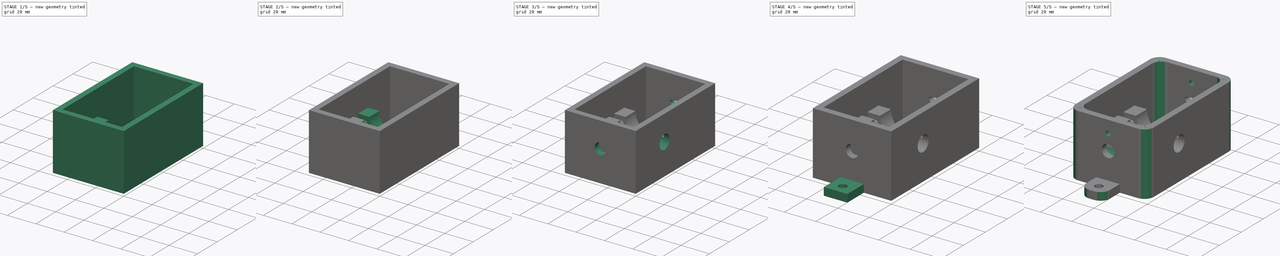
[diagram: build sequence overview — one tinted view per stage of 5, left to right]
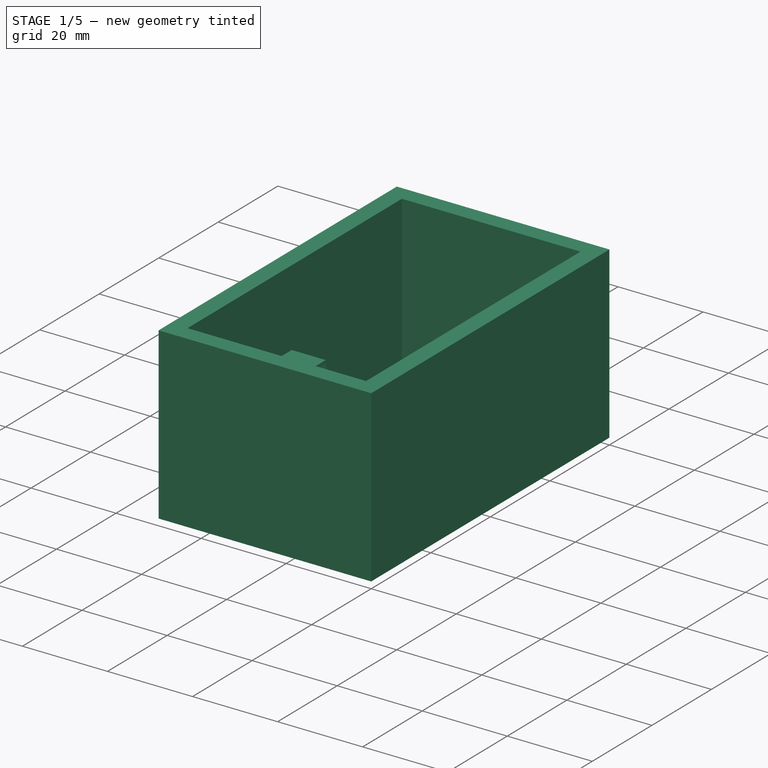
[diagram: stage 1 of 5 — iso view after this stage's code; geometry added in this stage tinted green]
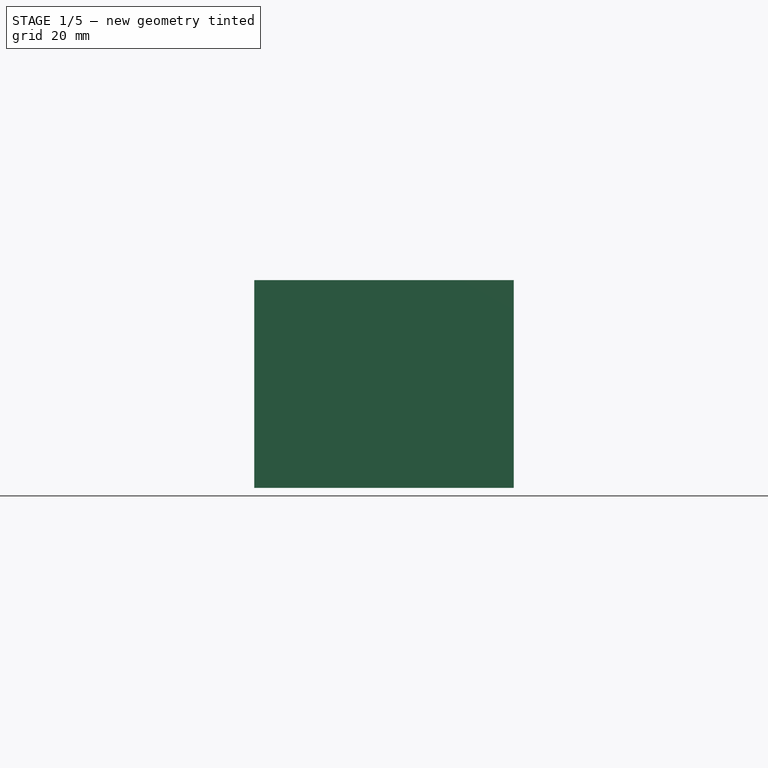
[diagram: stage 1 of 5 — front view after this stage's code; geometry added in this stage tinted green]
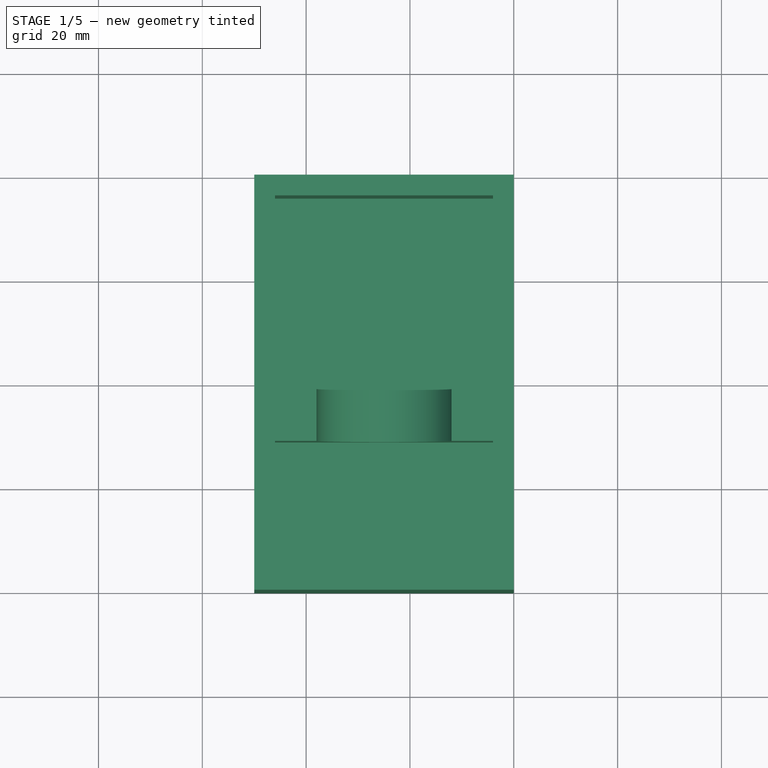
[diagram: stage 1 of 5 — top view after this stage's code; geometry added in this stage tinted green]
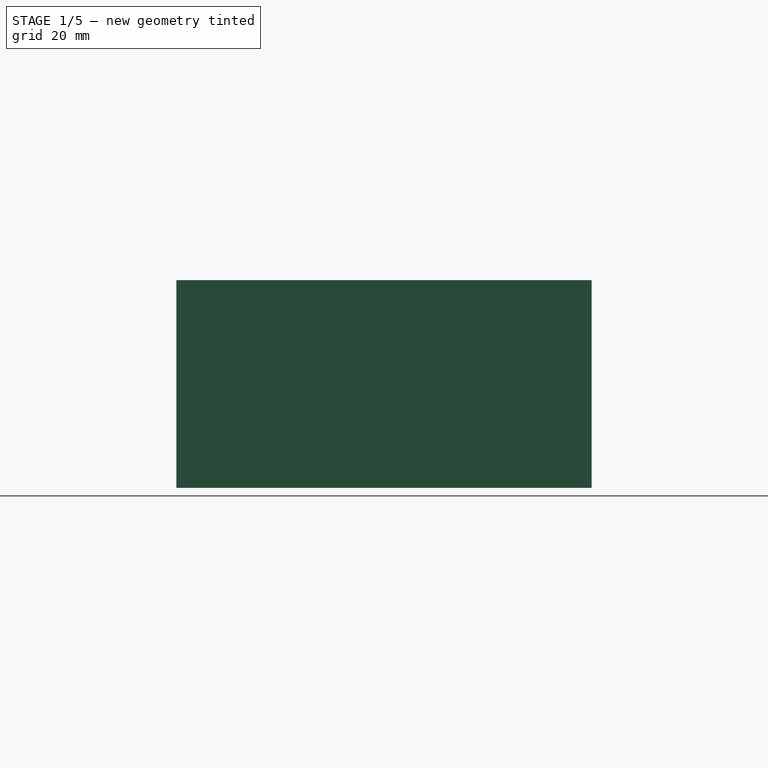
[diagram: stage 1 of 5 — right view after this stage's code; geometry added in this stage tinted green]
FCSTD DOCUMENT  (FreeCAD 0.19R24291 (Git))
Label: ValveMount
License: All rights reserved
LicenseURL: http://en.wikipedia.org/wiki/All_rights_reserved
objects: Sketcher::SketchObject×15, PartDesign::Pocket×8, PartDesign::Pad×7, App::MeasureDistance×5, PartDesign::Fillet×3, PartDesign::Body×1
note: 52 computed .brp shape members not serialized (recipe doc carries the construction recipe); baked Part::Feature solids carry a one-line shape summary decoded from their .brp

FEATURE [Sketcher::SketchObject] Sketch
  FullyConstrained = true
  MapMode = 5
  Support = -> [XY_Plane]
  sketch-geometry (4):
    g0: LineSegment StartX=0 StartY=0 StartZ=0 EndX=-50 EndY=0 EndZ=0
    g1: LineSegment StartX=-50 StartY=0 StartZ=0 EndX=-50 EndY=80 EndZ=0
    g2: LineSegment StartX=-50 StartY=80 StartZ=0 EndX=0 EndY=80 EndZ=0
    g3: LineSegment StartX=0 StartY=80 StartZ=0 EndX=0 EndY=0 EndZ=0
  constraints (11):
    c: Coincident(g0,g1)
    c: Coincident(g1,g2)
    c: Coincident(g2,g3)
    c: Coincident(g3,g0)
    c: Horizontal(g0)
    c: Horizontal(g2)
    c: Vertical(g1)
    c: Vertical(g3)
    c: Coincident(g0,g-1)
    c: DistanceY(g3,g3) = 80
    c: DistanceX(g0,g0) = 50
FEATURE [PartDesign::Pad] Pad
  Direction = (1,1,1)
  Length = 40
  Length2 = 100
  Profile = -> Sketch
  Type = 0
FEATURE [Sketcher::SketchObject] Sketch001
  ExternalGeometry = -> [Pad]
  FullyConstrained = true
  MapMode = 5
  Placement = pos=(0,0,40) rot=(0,0,1;0rad)
  Support = -> [Pad]
  sketch-geometry (4):
    g0: LineSegment StartX=-46 StartY=76 StartZ=0 EndX=-4 EndY=76 EndZ=0
    g1: LineSegment StartX=-4 StartY=76 StartZ=0 EndX=-4 EndY=4 EndZ=0
    g2: LineSegment StartX=-4 StartY=4 StartZ=0 EndX=-46 EndY=4 EndZ=0
    g3: LineSegment StartX=-46 StartY=4 StartZ=0 EndX=-46 EndY=76 EndZ=0
  constraints (12):
    c: Coincident(g0,g1)
    c: Coincident(g1,g2)
    c: Coincident(g2,g3)
    c: Coincident(g3,g0)
    c: Horizontal(g0)
    c: Horizontal(g2)
    c: Vertical(g1)
    c: Vertical(g3)
    c: DistanceY(g-1,g1) = 4
    c: DistanceX(g-2,g1) = -4
    c: Distance(g2,g-3) = 4
    c: Distance(g0,g-4) = 4
FEATURE [PartDesign::Pocket] Pocket
  BaseFeature = -> Pad
  Length = 36
  Length2 = 100
  Profile = -> Sketch001
  Type = 0
FEATURE [Sketcher::SketchObject] Sketch002
  ExternalGeometry = -> [Pocket]
  FullyConstrained = true
  MapMode = 5
  Placement = pos=(0,0,4) rot=(0,0,1;0rad)
  Support = -> [Pocket]
  sketch-geometry (4):
    g0: LineSegment StartX=-4 StartY=29 StartZ=0 EndX=-46 EndY=29 EndZ=0
    g1: LineSegment StartX=-46 StartY=29 StartZ=0 EndX=-46 EndY=39 EndZ=0
    g2: LineSegment StartX=-46 StartY=39 StartZ=0 EndX=-4 EndY=39 EndZ=0
    g3: LineSegment StartX=-4 StartY=39 StartZ=0 EndX=-4 EndY=29 EndZ=0
  constraints (12):
    c: Coincident(g0,g1)
    c: Coincident(g1,g2)
    c: Coincident(g2,g3)
    c: Coincident(g3,g0)
    c: Horizontal(g0)
    c: Horizontal(g2)
    c: Vertical(g1)
    c: Vertical(g3)
    c: PointOnObject(g0,g-4)
    c: PointOnObject(g1,g-3)
    c: Distance(g0,g2) = 10
    c: Distance(g0,g-5) = 25
FEATURE [PartDesign::Pad] Pad001
  BaseFeature = -> Pocket
  Direction = (1,1,1)
  Length = 18
  Length2 = 100
  Profile = -> Sketch002
  Type = 0
FEATURE [Sketcher::SketchObject] Sketch003
  ExternalGeometry = -> [Pad001]
  FullyConstrained = true
  MapMode = 5
  Placement = pos=(0,29,0) rot=(1,0,0;1.5708rad)
  Support = -> [Pad001]
  sketch-geometry (3):
    g0: Circle CenterX=-25 CenterY=22 CenterZ=0 NormalX=0 NormalY=0 NormalZ=1 AngleXU=0 Radius=13
    g1: LineSegment StartX=-46 StartY=22 StartZ=0 EndX=-25 EndY=22 EndZ=0
    g2: LineSegment StartX=-25 StartY=22 StartZ=0 EndX=-4 EndY=22 EndZ=0
  constraints (7):
    c: PointOnObject(g0,g-6)
    c: Radius(g0) = 13
    c: Coincident(g1,g-6)
    c: Coincident(g1,g0)
    c: Coincident(g2,g0)
    c: Coincident(g2,g-6)
    c: Equal(g2,g1)
FEATURE [PartDesign::Pocket] Pocket001
  BaseFeature = -> Pad001
  Length = 30
  Length2 = 100
  Profile = -> Sketch003
  Type = 0
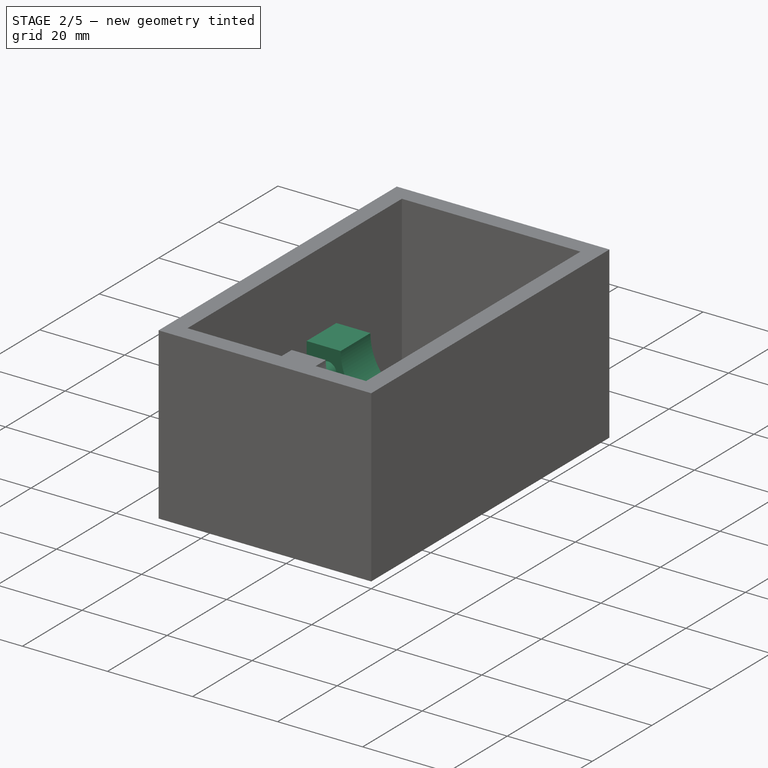
[diagram: stage 2 of 5 — iso view after this stage's code; geometry added in this stage tinted green]
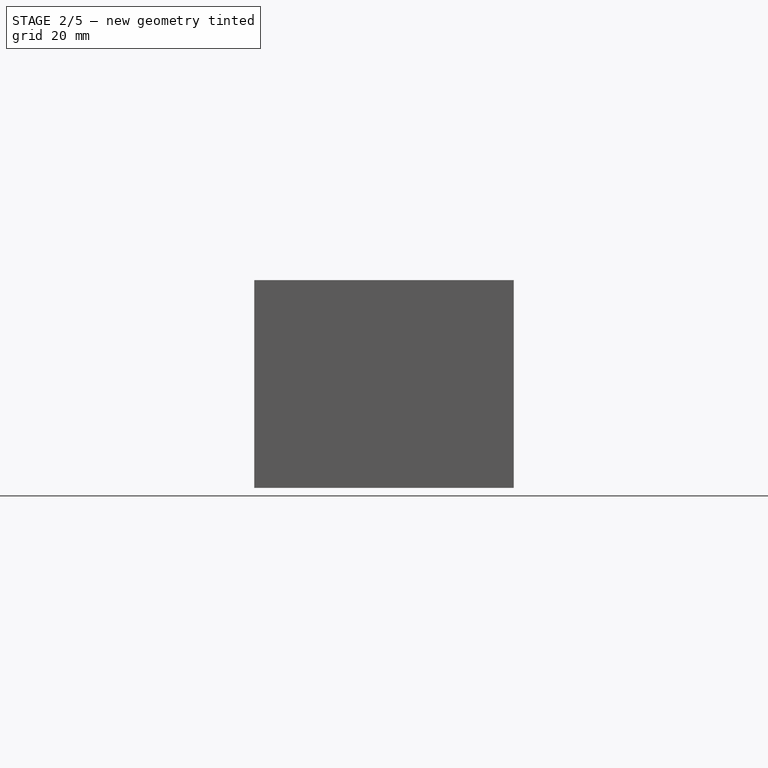
[diagram: stage 2 of 5 — front view after this stage's code; geometry added in this stage tinted green]
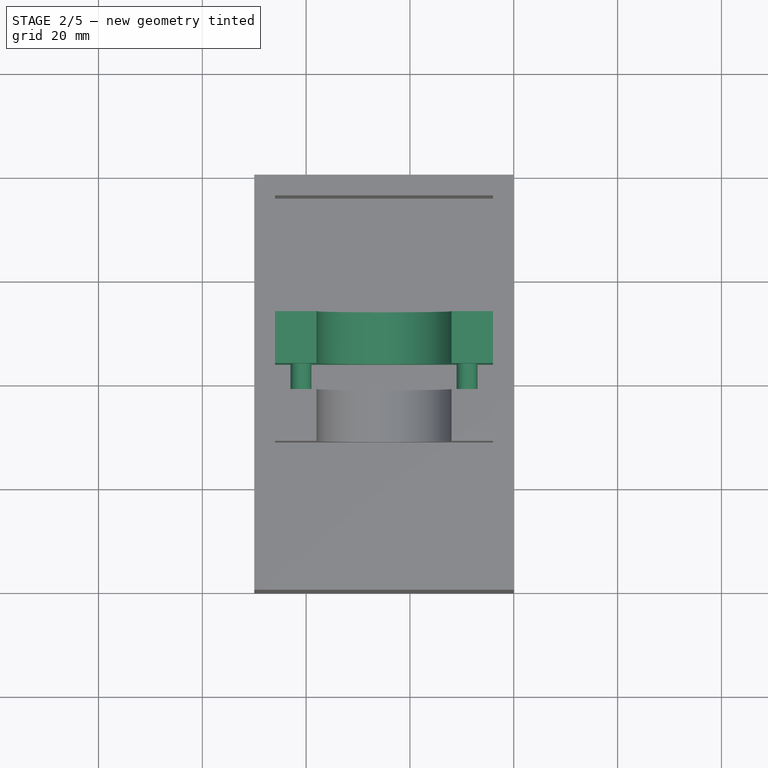
[diagram: stage 2 of 5 — top view after this stage's code; geometry added in this stage tinted green]
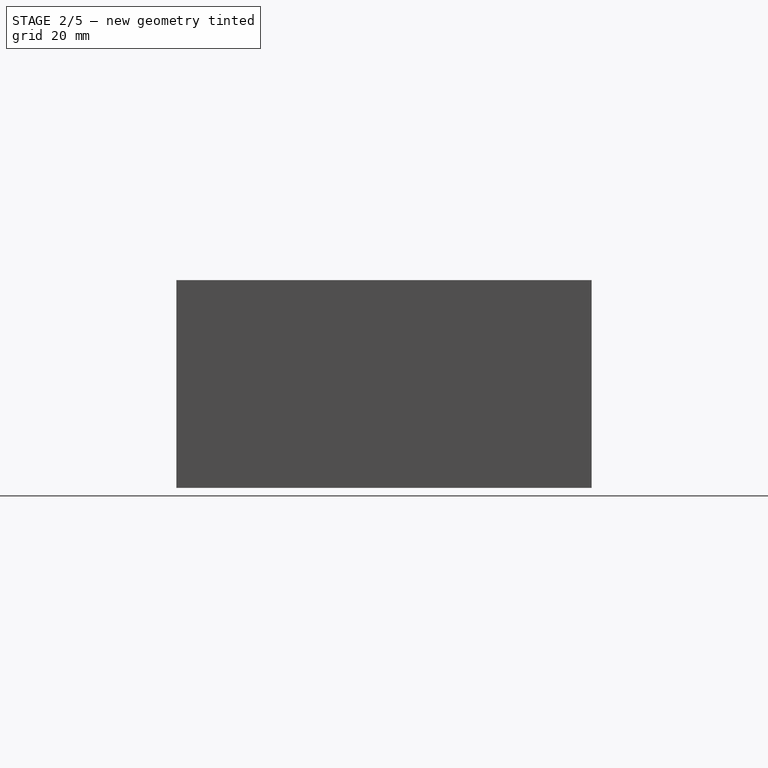
[diagram: stage 2 of 5 — right view after this stage's code; geometry added in this stage tinted green]
FEATURE [Sketcher::SketchObject] Sketch004
  ExternalGeometry = -> [Pocket001]
  FullyConstrained = true
  MapMode = 5
  Placement = pos=(0,0,4) rot=(0,0,1;0rad)
  Support = -> [Pocket001]
  sketch-geometry (4):
    g0: LineSegment StartX=-46 StartY=54 StartZ=0 EndX=-4 EndY=54 EndZ=0
    g1: LineSegment StartX=-4 StartY=54 StartZ=0 EndX=-4 EndY=44 EndZ=0
    g2: LineSegment StartX=-4 StartY=44 StartZ=0 EndX=-46 EndY=44 EndZ=0
    g3: LineSegment StartX=-46 StartY=44 StartZ=0 EndX=-46 EndY=54 EndZ=0
  constraints (12):
    c: Coincident(g0,g1)
    c: Coincident(g1,g2)
    c: Coincident(g2,g3)
    c: Coincident(g3,g0)
    c: Horizontal(g0)
    c: Horizontal(g2)
    c: Vertical(g1)
    c: Vertical(g3)
    c: PointOnObject(g0,g-3)
    c: PointOnObject(g1,g-4)
    c: Distance(g0,g2) = 10
    c: Distance(g-5,g2) = 5
FEATURE [PartDesign::Pad] Pad002
  BaseFeature = -> Pocket001
  Direction = (1,1,1)
  Length = 18
  Length2 = 100
  Profile = -> Sketch004
  Type = 0
FEATURE [Sketcher::SketchObject] Sketch005
  ExternalGeometry = -> [Pad002]
  FullyConstrained = true
  MapMode = 5
  Placement = pos=(0,44,0) rot=(1,0,0;1.5708rad)
  Support = -> [Pad002]
  sketch-geometry (1):
    g0: Circle CenterX=-25 CenterY=22 CenterZ=0 NormalX=0 NormalY=0 NormalZ=1 AngleXU=0 Radius=13
  constraints (2):
    c: Coincident(g0,g-4)
    c: PointOnObject(g-4,g0)
FEATURE [PartDesign::Pocket] Pocket002
  BaseFeature = -> Pad002
  Length = 10
  Length2 = 100
  Profile = -> Sketch005
  Type = 0
FEATURE [App::MeasureDistance] Distance  label="Distance: 36,01 mm"
  Distance = 36.0095
  P1 = (-4.415,75.9438,4)
  P2 = (-5.23976,76,40)
FEATURE [App::MeasureDistance] Distance001  label="Distance: 15,00 mm"
  Distance = 15.0004
  P1 = (-4.03134,28.8949,4)
  P2 = (-4.0553,29,19)
FEATURE [Sketcher::SketchObject] Sketch006
  ExternalGeometry = -> [Pocket002]
  FullyConstrained = true
  MapMode = 5
  Placement = pos=(0,44,0) rot=(1,0,0;1.5708rad)
  Support = -> [Pocket002]
  sketch-geometry (8):
    g0: ArcOfCircle CenterX=-41 CenterY=17 CenterZ=0 NormalX=0 NormalY=0 NormalZ=1 AngleXU=0 Radius=2 StartAngle=5e-16 EndAngle=3.14159
    g1: ArcOfCircle CenterX=-41 CenterY=12 CenterZ=0 NormalX=0 NormalY=0 NormalZ=1 AngleXU=0 Radius=2 StartAngle=3.14159 EndAngle=6.28319
    g2: LineSegment StartX=-43 StartY=17 StartZ=0 EndX=-43 EndY=12 EndZ=0
    g3: LineSegment StartX=-39 StartY=17 StartZ=0 EndX=-39 EndY=12 EndZ=0
    g4: ArcOfCircle CenterX=-9 CenterY=17 CenterZ=0 NormalX=0 NormalY=0 NormalZ=1 AngleXU=0 Radius=2 StartAngle=0 EndAngle=3.14159
    g5: ArcOfCircle CenterX=-9 CenterY=12 CenterZ=0 NormalX=0 NormalY=0 NormalZ=1 AngleXU=0 Radius=2 StartAngle=3.14159 EndAngle=6.28319
    g6: LineSegment StartX=-11 StartY=17 StartZ=0 EndX=-11 EndY=12 EndZ=0
    g7: LineSegment StartX=-7 StartY=17 StartZ=0 EndX=-7 EndY=12 EndZ=0
  constraints (20):
    c: Tangent(g0,g3) = 1.5708
    c: Tangent(g0,g2) = -1.5708
    c: Tangent(g2,g1) = -1.5708
    c: Tangent(g3,g1) = 1.5708
    c: Vertical(g2)
    c: Equal(g0,g1)
    c: Tangent(g4,g7) = 1.5708
    c: Tangent(g4,g6) = -1.5708
    c: Tangent(g6,g5) = -1.5708
    c: Tangent(g7,g5) = 1.5708
    c: Vertical(g6)
    c: Equal(g4,g5)
    c: Equal(g7,g3)
    c: Equal(g0,g4)
    c: Distance(g0,g-7) = 3
    c: Distance(g4,g-6) = 3
    c: Distance(g4,g-3) = 5
    c: Distance(g0,g-5) = 5
    c: Distance(g1,g-7) = 5
    c: DistanceY(g6,g6) = 5
FEATURE [PartDesign::Pad] Pad003
  BaseFeature = -> Pocket002
  Direction = (1,1,1)
  Length = 5
  Length2 = 100
  Profile = -> Sketch006
  Type = 0
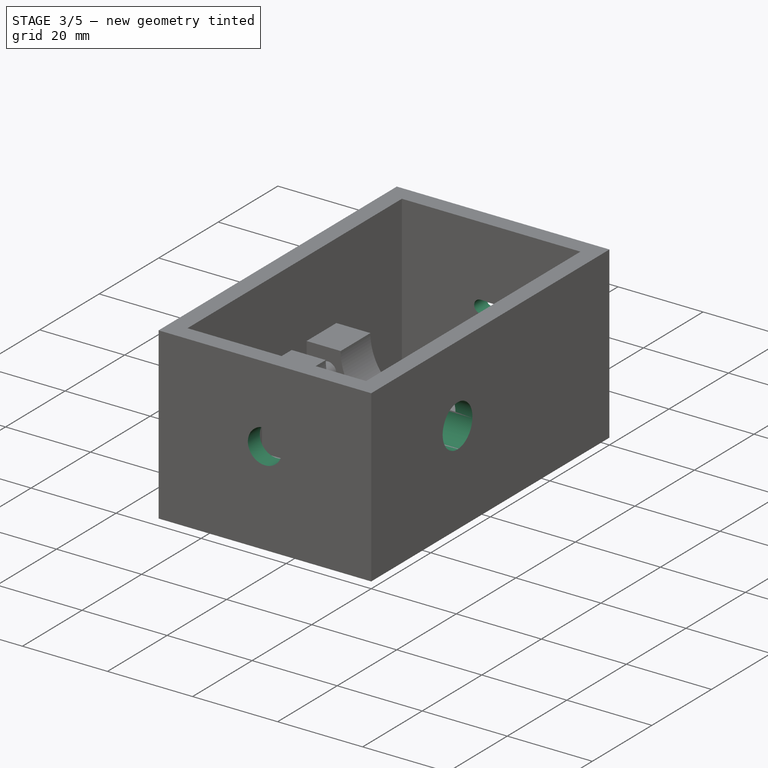
[diagram: stage 3 of 5 — iso view after this stage's code; geometry added in this stage tinted green]
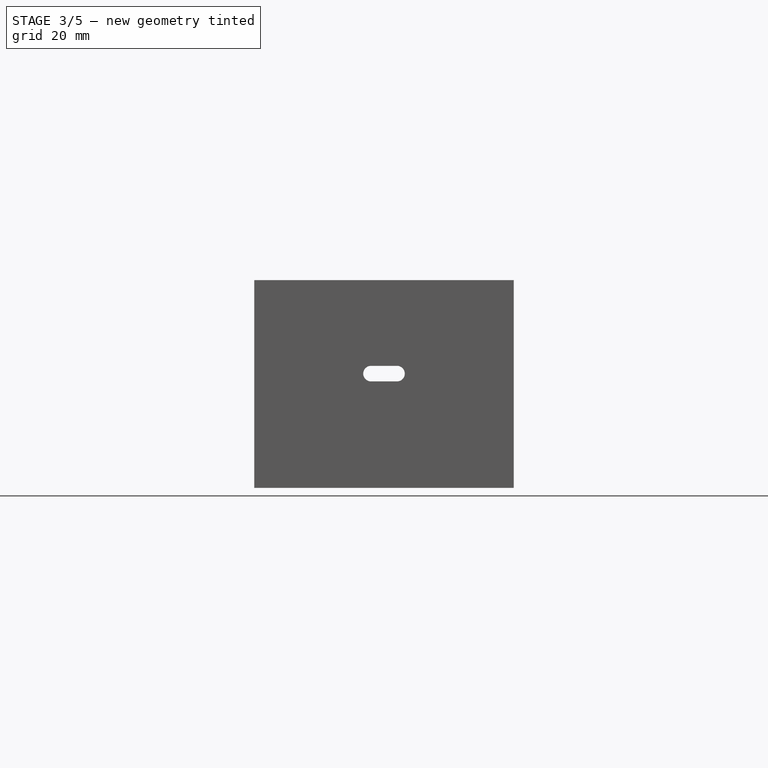
[diagram: stage 3 of 5 — front view after this stage's code; geometry added in this stage tinted green]
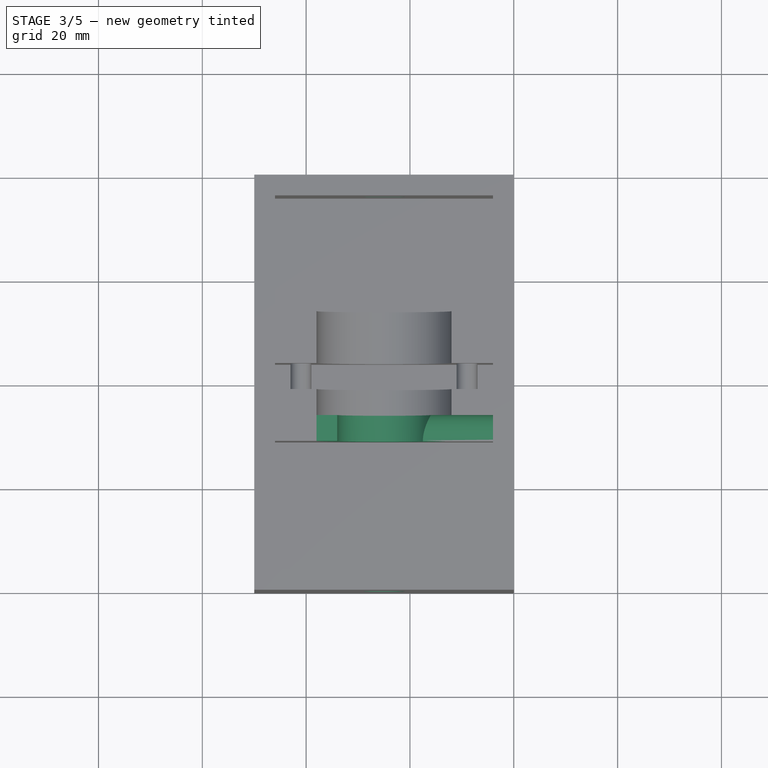
[diagram: stage 3 of 5 — top view after this stage's code; geometry added in this stage tinted green]
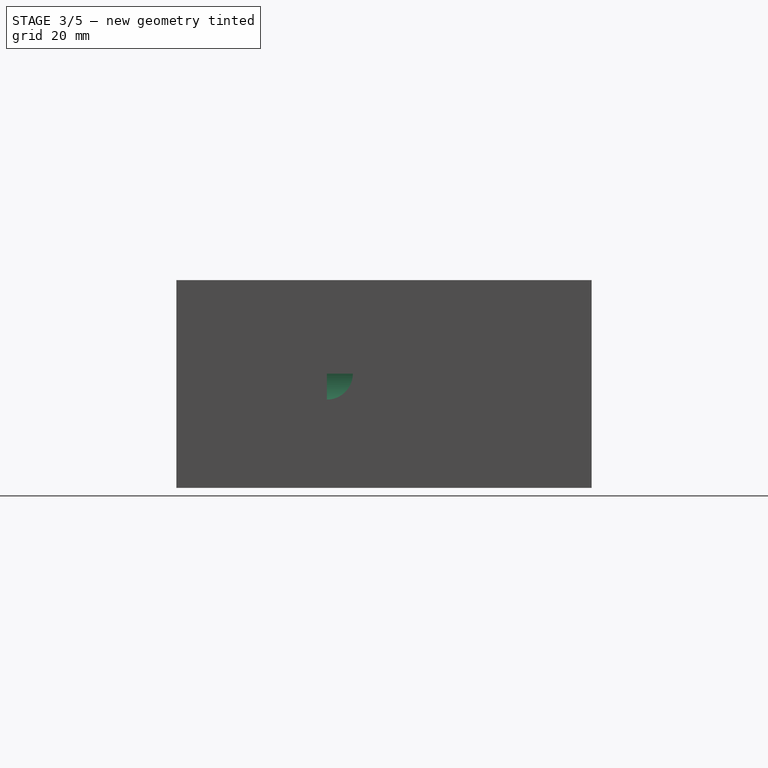
[diagram: stage 3 of 5 — right view after this stage's code; geometry added in this stage tinted green]
FEATURE [App::MeasureDistance] Distance002  label="Distance: 21,86 mm"
  Distance = 21.8583
  P1 = (-4.15041,75.8632,4)
  P2 = (-4.06757,54.005,4)
FEATURE [App::MeasureDistance] Distance003  label="Distance: 24,99 mm"
  Distance = 24.9938
  P1 = (-45.8393,4,4.1323)
  P2 = (-45.9947,28.9929,4)
FEATURE [App::MeasureDistance] Distance004  label="Distance: 47,03 mm"
  Distance = 47.0301
  P1 = (-45.8602,28.8864,4)
  P2 = (-45.9573,75.9164,4)
FEATURE [Sketcher::SketchObject] Sketch007
  ExternalGeometry = -> [Pad003]
  FullyConstrained = true
  MapMode = 5
  Placement = pos=(0,29,0) rot=(1,0,0;1.5708rad)
  Support = -> [Pad003]
  sketch-geometry (4):
    g0: ArcOfCircle CenterX=-25 CenterY=22 CenterZ=0 NormalX=0 NormalY=0 NormalZ=1 AngleXU=0 Radius=13 StartAngle=3.14159 EndAngle=6.28319
    g1: ArcOfCircle CenterX=-25 CenterY=22 CenterZ=0 NormalX=0 NormalY=0 NormalZ=1 AngleXU=0 Radius=9 StartAngle=3.14159 EndAngle=6.28319
    g2: LineSegment StartX=-38 StartY=22 StartZ=0 EndX=-34 EndY=22 EndZ=0
    g3: LineSegment StartX=-16 StartY=22 StartZ=0 EndX=-12 EndY=22 EndZ=0
  constraints (11):
    c: Coincident(g0,g-3)
    c: Coincident(g0,g-3)
    c: Coincident(g1,g0)
    c: Distance(g0,g1) = 4
    c: Coincident(g2,g0)
    c: Coincident(g2,g1)
    c: Horizontal(g2)
    c: Coincident(g3,g1)
    c: Coincident(g3,g0)
    c: Horizontal(g3)
    c: PointOnObject(g0,g-4)
FEATURE [PartDesign::Pad] Pad004
  BaseFeature = -> Pad003
  Direction = (1,1,1)
  Length = 5
  Length2 = 100
  Profile = -> Sketch007
  Reversed = true
  Type = 0
FEATURE [Sketcher::SketchObject] Sketch008
  ExternalGeometry = -> [Pad004]
  FullyConstrained = true
  MapMode = 5
  Placement = pos=(0,0,0) rot=(0.57735,0.57735,0.57735;2.0944rad)
  Support = -> [Pad004]
  sketch-geometry (1):
    g0: Circle CenterX=29 CenterY=22 CenterZ=0 NormalX=0 NormalY=0 NormalZ=1 AngleXU=0 Radius=5
  constraints (2):
    c: Coincident(g0,g-3)
    c: Radius(g0) = 5
FEATURE [PartDesign::Pocket] Pocket003
  BaseFeature = -> Pad004
  Length = 19
  Length2 = 100
  Profile = -> Sketch008
  Type = 0
FEATURE [Sketcher::SketchObject] Sketch009
  ExternalGeometry = -> [Pocket003]
  FullyConstrained = true
  MapMode = 5
  Placement = pos=(0,80,0) rot=(0,0.707107,0.707107;3.14159rad)
  Support = -> [Pocket003]
  sketch-geometry (5):
    g0: ArcOfCircle CenterX=22.5 CenterY=22 CenterZ=0 NormalX=0 NormalY=0 NormalZ=1 AngleXU=0 Radius=1.5 StartAngle=1.5708 EndAngle=4.71239
    g1: ArcOfCircle CenterX=27.5 CenterY=22 CenterZ=0 NormalX=0 NormalY=0 NormalZ=1 AngleXU=0 Radius=1.5 StartAngle=4.71239 EndAngle=7.85398
    g2: LineSegment StartX=22.5 StartY=20.5 StartZ=0 EndX=27.5 EndY=20.5 EndZ=0
    g3: LineSegment StartX=22.5 StartY=23.5 StartZ=0 EndX=27.5 EndY=23.5 EndZ=0
    g4: LineSegment StartX=22.5 StartY=22 StartZ=0 EndX=27.5 EndY=22 EndZ=0
  constraints (12):
    c: Tangent(g0,g3) = 1.5708
    c: Tangent(g0,g2) = -1.5708
    c: Tangent(g2,g1) = -1.5708
    c: Tangent(g3,g1) = 1.5708
    c: Horizontal(g2)
    c: Equal(g0,g1)
    c: Coincident(g4,g0)
    c: Coincident(g4,g1)
    c: PointOnObject(g-3,g4)
    c: Distance(g0,g0) = 3
    c: Distance(g0,g1) = 5
    c: Distance(g1,g-3) = 2.5
FEATURE [PartDesign::Pocket] Pocket004
  BaseFeature = -> Pocket003
  Length = 5
  Length2 = 100
  Profile = -> Sketch009
  Type = 0
FEATURE [Sketcher::SketchObject] Sketch010
  ExternalGeometry = -> [Pocket004]
  FullyConstrained = true
  MapMode = 5
  Placement = pos=(0,0,0) rot=(1,0,0;1.5708rad)
  Support = -> [Pocket004]
  sketch-geometry (1):
    g0: Circle CenterX=-25 CenterY=22 CenterZ=0 NormalX=0 NormalY=0 NormalZ=1 AngleXU=0 Radius=4
  constraints (2):
    c: Coincident(g0,g-3)
    c: Radius(g0) = 4
FEATURE [PartDesign::Pocket] Pocket005
  BaseFeature = -> Pocket004
  Length = 5
  Length2 = 100
  Profile = -> Sketch010
  Type = 0
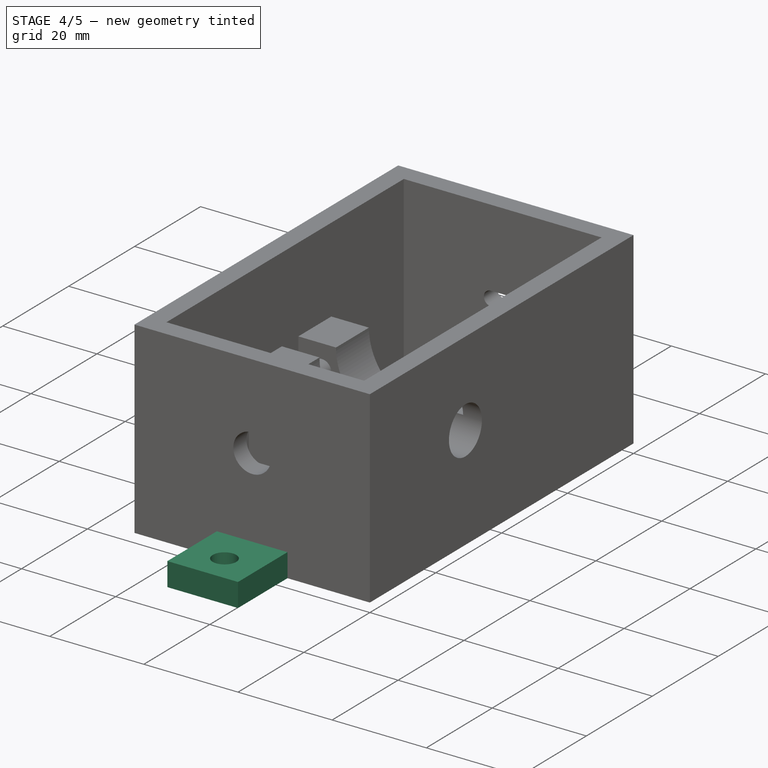
[diagram: stage 4 of 5 — iso view after this stage's code; geometry added in this stage tinted green]
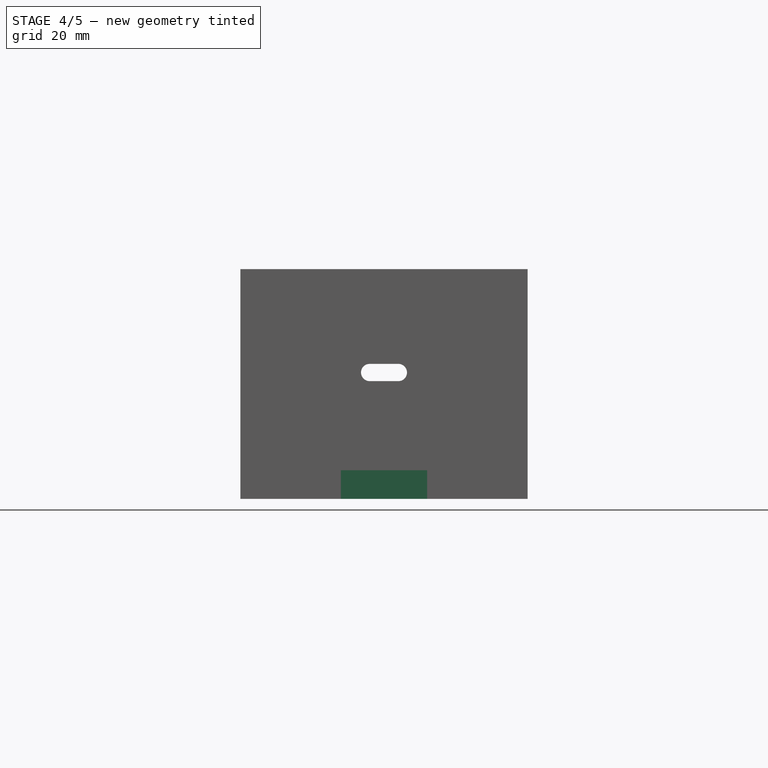
[diagram: stage 4 of 5 — front view after this stage's code; geometry added in this stage tinted green]
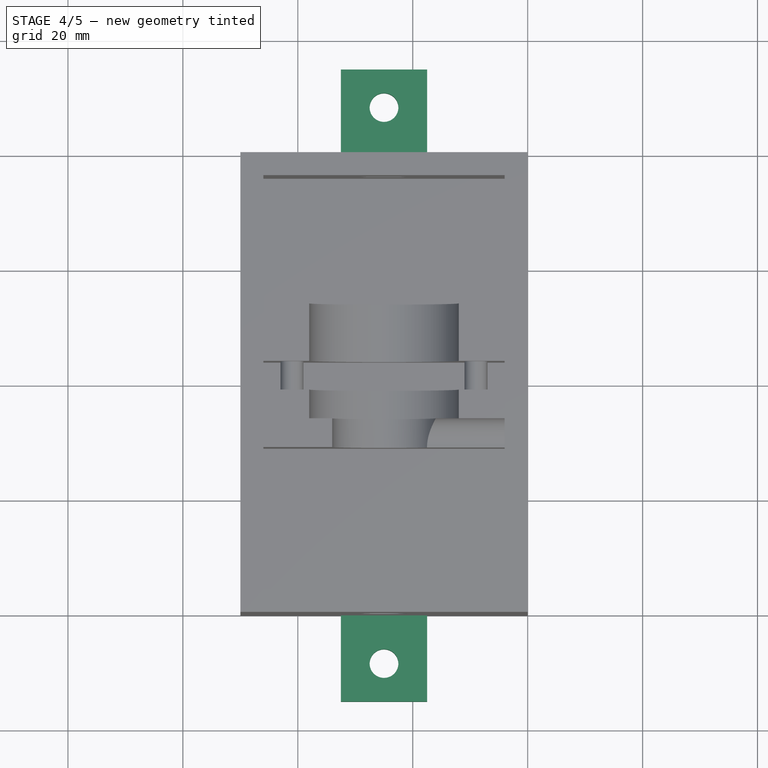
[diagram: stage 4 of 5 — top view after this stage's code; geometry added in this stage tinted green]
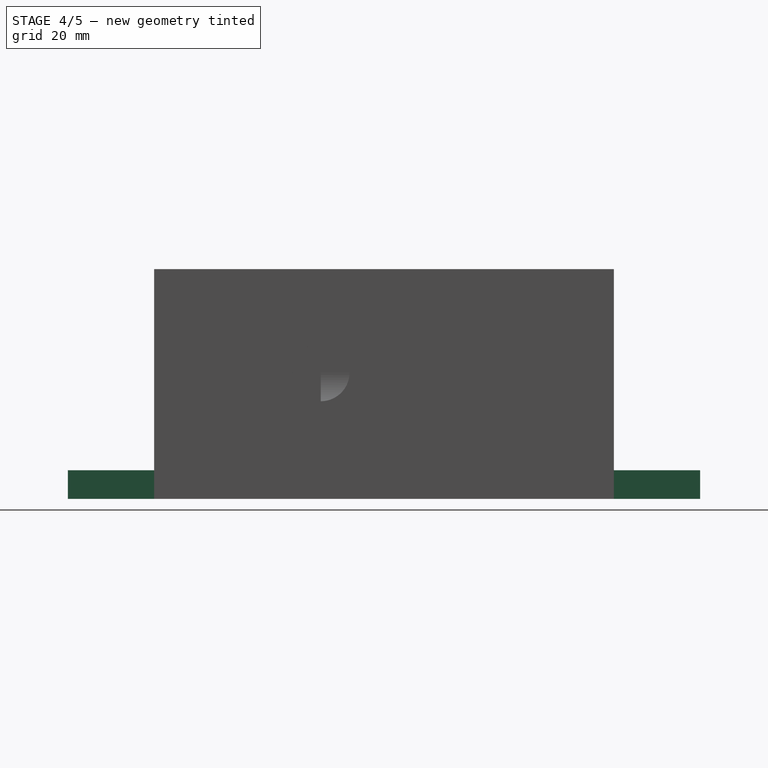
[diagram: stage 4 of 5 — right view after this stage's code; geometry added in this stage tinted green]
FEATURE [Sketcher::SketchObject] Sketch011
  ExternalGeometry = -> [Pocket005]
  FullyConstrained = true
  MapMode = 5
  Placement = pos=(0,80,0) rot=(0,0.707107,0.707107;3.14159rad)
  Support = -> [Pocket005]
  sketch-geometry (6):
    g0: LineSegment StartX=17.5 StartY=0 StartZ=0 EndX=32.5 EndY=0 EndZ=0
    g1: LineSegment StartX=32.5 StartY=0 StartZ=0 EndX=32.5 EndY=5 EndZ=0
    g2: LineSegment StartX=32.5 StartY=5 StartZ=0 EndX=17.5 EndY=5 EndZ=0
    g3: LineSegment StartX=17.5 StartY=5 StartZ=0 EndX=17.5 EndY=0 EndZ=0
    g4: LineSegment StartX=0 StartY=0 StartZ=0 EndX=17.5 EndY=0 EndZ=0
    g5: LineSegment StartX=32.5 StartY=0 StartZ=0 EndX=50 EndY=0 EndZ=0
  constraints (16):
    c: Coincident(g0,g1)
    c: Coincident(g1,g2)
    c: Coincident(g2,g3)
    c: Coincident(g3,g0)
    c: Horizontal(g0)
    c: Horizontal(g2)
    c: Vertical(g1)
    c: Vertical(g3)
    c: PointOnObject(g0,g-5)
    c: DistanceX(g0,g0) = 15
    c: Coincident(g4,g-1)
    c: Coincident(g4,g0)
    c: Coincident(g5,g0)
    c: Coincident(g5,g-5)
    c: Equal(g5,g4)
    c: DistanceY(g1,g1) = 5
FEATURE [PartDesign::Pad] Pad005
  BaseFeature = -> Pocket005
  Direction = (1,1,1)
  Length = 15
  Length2 = 100
  Profile = -> Sketch011
  Type = 0
FEATURE [Sketcher::SketchObject] Sketch012
  ExternalGeometry = -> [Pad005]
  FullyConstrained = true
  MapMode = 5
  Placement = pos=(0,0,0) rot=(1,0,0;1.5708rad)
  Support = -> [Pad005]
  sketch-geometry (4):
    g0: LineSegment StartX=-32.5 StartY=5 StartZ=0 EndX=-17.5 EndY=5 EndZ=0
    g1: LineSegment StartX=-17.5 StartY=5 StartZ=0 EndX=-17.5 EndY=0 EndZ=0
    g2: LineSegment StartX=-17.5 StartY=0 StartZ=0 EndX=-32.5 EndY=0 EndZ=0
    g3: LineSegment StartX=-32.5 StartY=0 StartZ=0 EndX=-32.5 EndY=5 EndZ=0
  constraints (10):
    c: Coincident(g0,g1)
    c: Coincident(g1,g2)
    c: Coincident(g2,g3)
    c: Coincident(g3,g0)
    c: Horizontal(g0)
    c: Horizontal(g2)
    c: Vertical(g1)
    c: Vertical(g3)
    c: Coincident(g0,g-5)
    c: Coincident(g2,g-4)
FEATURE [PartDesign::Pad] Pad006
  BaseFeature = -> Pad005
  Direction = (1,1,1)
  Length = 15
  Length2 = 100
  Profile = -> Sketch012
  Type = 0
FEATURE [Sketcher::SketchObject] Sketch013
  ExternalGeometry = -> [Pad006]
  FullyConstrained = true
  MapMode = 5
  Placement = pos=(0,1.1e-15,5) rot=(0,0,1;0rad)
  Support = -> [Pad006]
  sketch-geometry (6):
    g0: LineSegment StartX=-32.5 StartY=-15 StartZ=0 EndX=-25 EndY=-8.38562 EndZ=0
    g1: LineSegment StartX=-25 StartY=-8.38562 StartZ=0 EndX=-17.5 EndY=-15 EndZ=0
    g2: LineSegment StartX=-32.5 StartY=95 StartZ=0 EndX=-25 EndY=88.3856 EndZ=0
    g3: LineSegment StartX=-25 StartY=88.3856 StartZ=0 EndX=-17.5 EndY=95 EndZ=0
    g4: Circle CenterX=-25 CenterY=88.3856 CenterZ=0 NormalX=0 NormalY=0 NormalZ=1 AngleXU=0 Radius=2.5
    g5: Circle CenterX=-25 CenterY=-8.38562 CenterZ=0 NormalX=0 NormalY=0 NormalZ=1 AngleXU=0 Radius=2.5
  constraints (14):
    c: Coincident(g0,g-4)
    c: Coincident(g1,g0)
    c: Coincident(g1,g-4)
    c: Coincident(g2,g-3)
    c: Coincident(g3,g2)
    c: Coincident(g3,g-3)
    c: Equal(g2,g3)
    c: Equal(g3,g0)
    c: Equal(g0,g1)
    c: Distance(g1) = 10
    c: Coincident(g4,g2)
    c: Coincident(g5,g0)
    c: Radius(g5) = 2.5
    c: Equal(g5,g4)
FEATURE [PartDesign::Pocket] Pocket006
  BaseFeature = -> Pad006
  Length = 5
  Length2 = 100
  Profile = -> Sketch013
  Type = 0
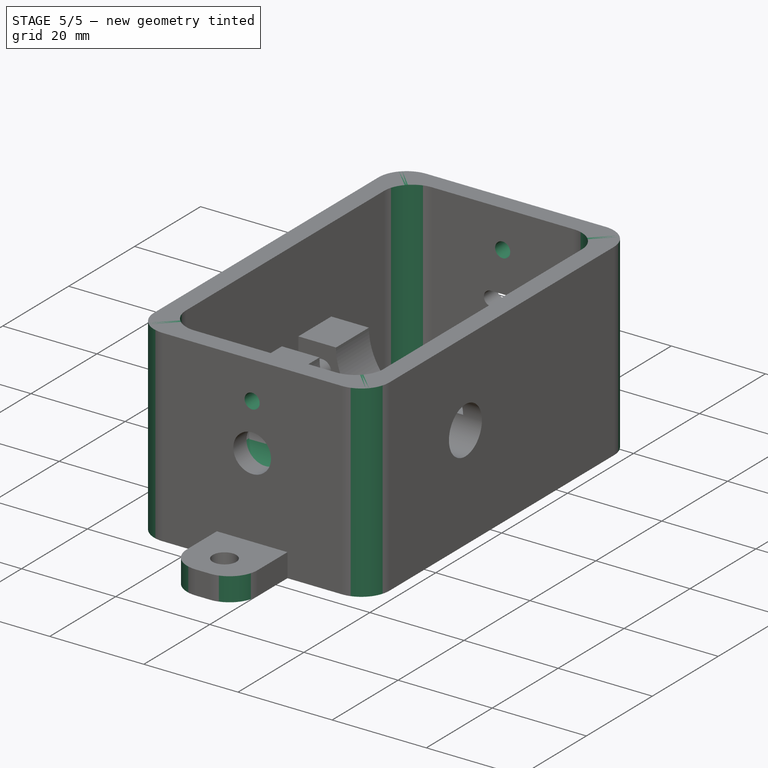
[diagram: stage 5 of 5 — iso view after this stage's code; geometry added in this stage tinted green]
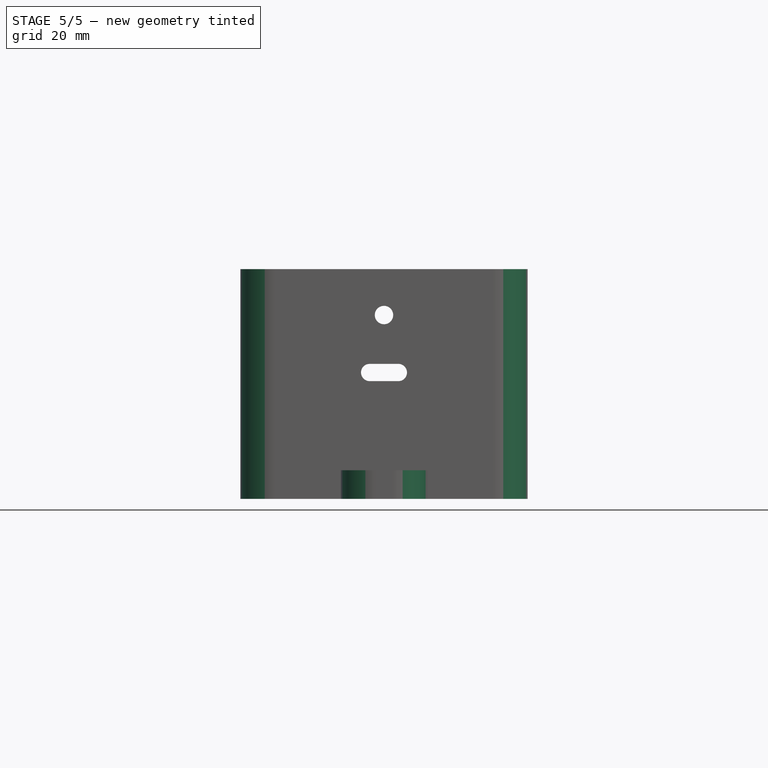
[diagram: stage 5 of 5 — front view after this stage's code; geometry added in this stage tinted green]
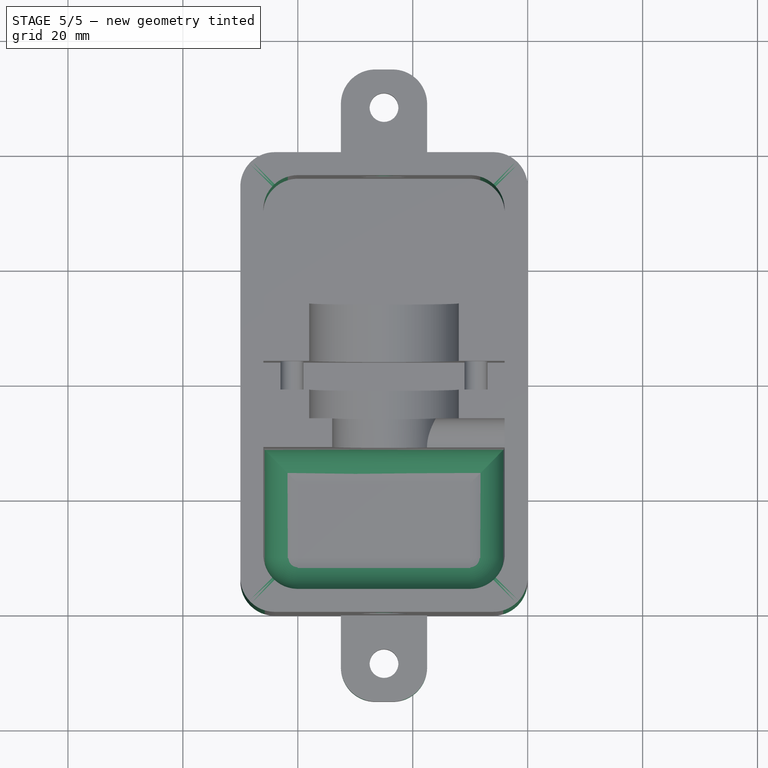
[diagram: stage 5 of 5 — top view after this stage's code; geometry added in this stage tinted green]
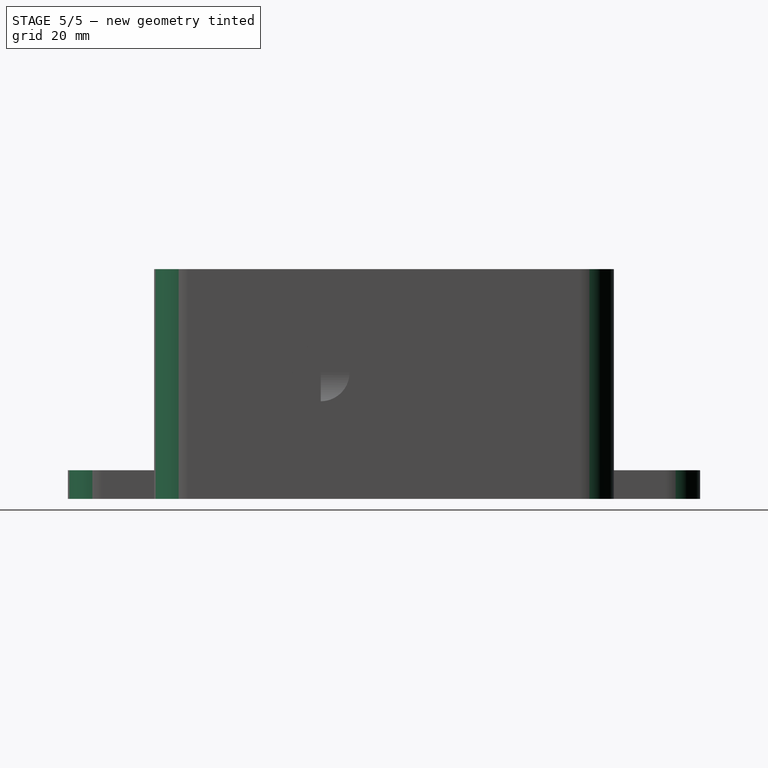
[diagram: stage 5 of 5 — right view after this stage's code; geometry added in this stage tinted green]
FEATURE [PartDesign::Fillet] Fillet
  Base = -> Pocket006 [Edge23,Edge18,Edge86,Edge90]
  BaseFeature = -> Pocket006
  Radius = 6
  SupportTransform = false
FEATURE [PartDesign::Fillet] Fillet001
  Base = -> Fillet [Face34,Edge77,Edge58,Edge60,Edge65]
  BaseFeature = -> Fillet
  Radius = 6
  SupportTransform = false
FEATURE [PartDesign::Fillet] Fillet002
  Base = -> Fillet001 [Edge57,Edge56,Edge62,Edge59]
  BaseFeature = -> Fillet001
  Radius = 6
  SupportTransform = false
FEATURE [Sketcher::SketchObject] Sketch014
  ExternalGeometry = -> [Fillet002]
  FullyConstrained = true
  MapMode = 5
  Placement = pos=(0,80,0) rot=(0,0.707107,0.707107;3.14159rad)
  Support = -> [Fillet002]
  sketch-geometry (4):
    g0: LineSegment StartX=6 StartY=40 StartZ=0 EndX=25 EndY=40 EndZ=0
    g1: LineSegment StartX=25 StartY=40 StartZ=0 EndX=44 EndY=40 EndZ=0
    g2: Circle CenterX=25 CenterY=32 CenterZ=0 NormalX=0 NormalY=0 NormalZ=1 AngleXU=0 Radius=1.6
    g3: LineSegment StartX=25 StartY=32 StartZ=0 EndX=25 EndY=40 EndZ=0
  constraints (10):
    c: Coincident(g0,g-3)
    c: PointOnObject(g0,g-3)
    c: Coincident(g1,g-3)
    c: Coincident(g0,g1)
    c: Equal(g0,g1)
    c: Coincident(g3,g2)
    c: Coincident(g3,g0)
    c: Angle(g0,g3) = 1.5708
    c: Distance(g2,g0) = 8
    c: Radius(g2) = 1.6
FEATURE [PartDesign::Pocket] Pocket007
  BaseFeature = -> Fillet002
  Length = 5
  Length2 = 100
  Profile = -> Sketch014
  Type = 1
FEATURE [PartDesign::Body] Body
  Group = -> [Sketch,Pad,Sketch001,Pocket,Sketch002,Pad001,Sketch003,Pocket001,Sketch004,Pad002,Sketch005,Pocket002,Sketch006,Pad003,Sketch007,Pad004,Sketch008,Pocket003,Sketch009,Pocket004,Sketch010,Pocket005,Sketch011,Pad005,Sketch012,Pad006,Sketch013,Pocket006,Fillet,Fillet001,Fillet002,Sketch014,Pocket007]
  Origin = -> Origin
  Tip = -> Pocket007
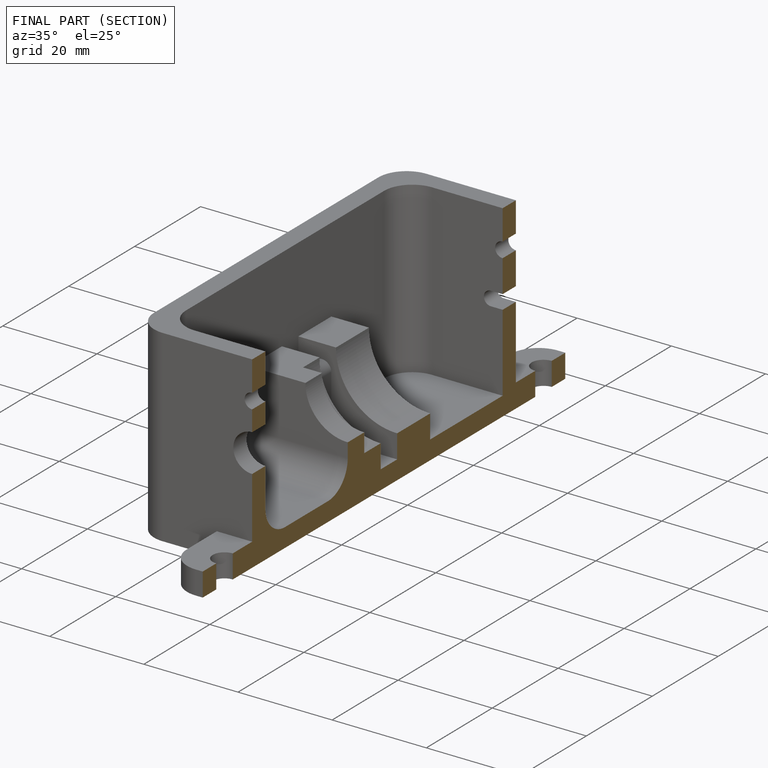
[diagram: finished part — half-section view (interior)]
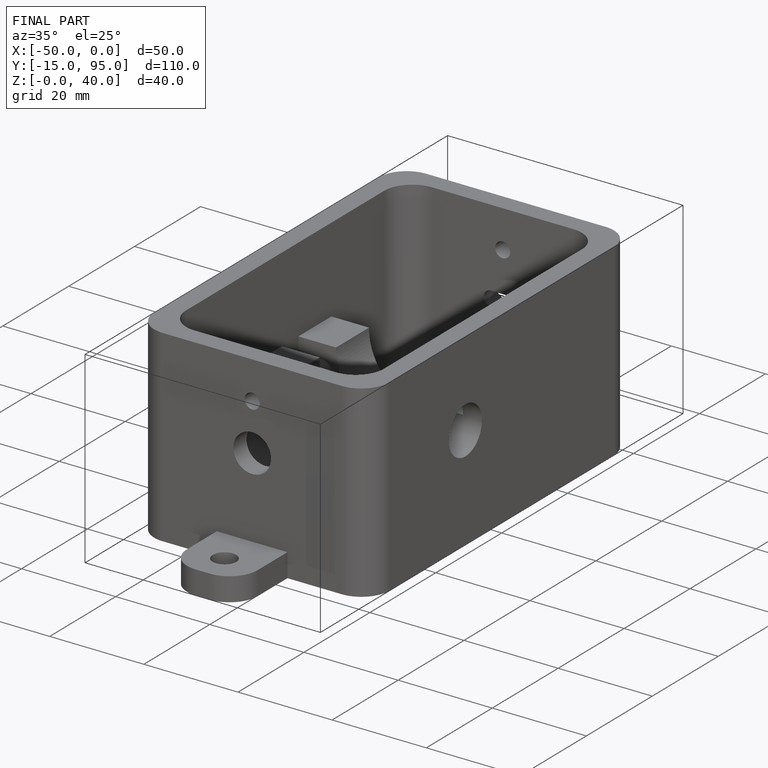
[diagram: finished part — iso view with bounding-box wireframe]
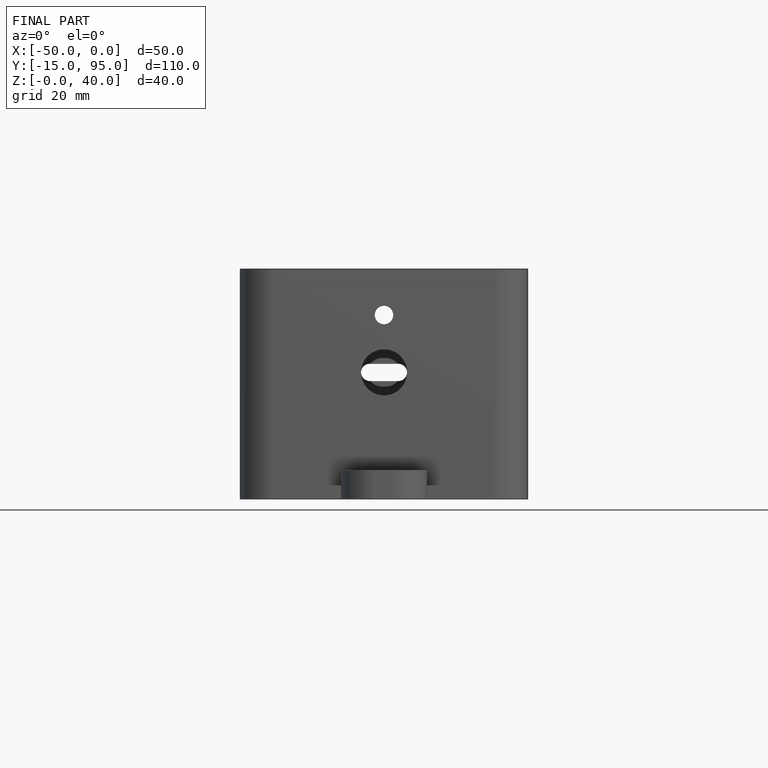
[diagram: finished part — front view with bounding-box wireframe]
